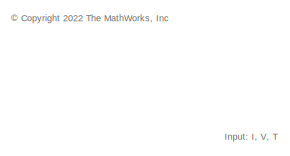
[diagram: root canvas - part 1/2, top left region]
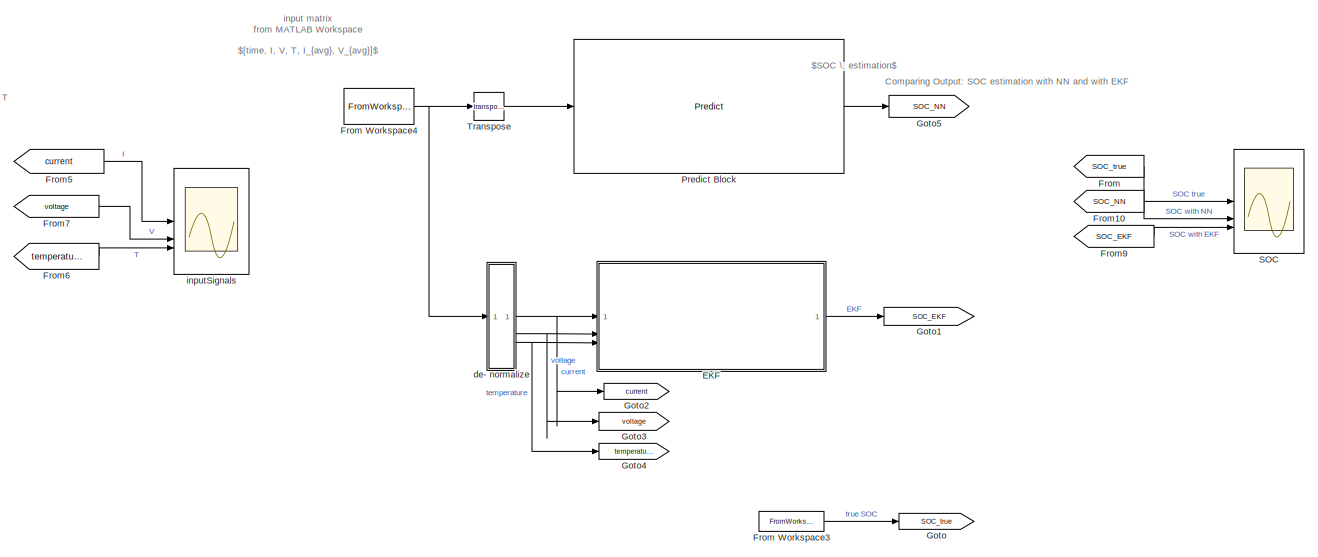
[diagram: root canvas - part 2/2, most of the canvas]
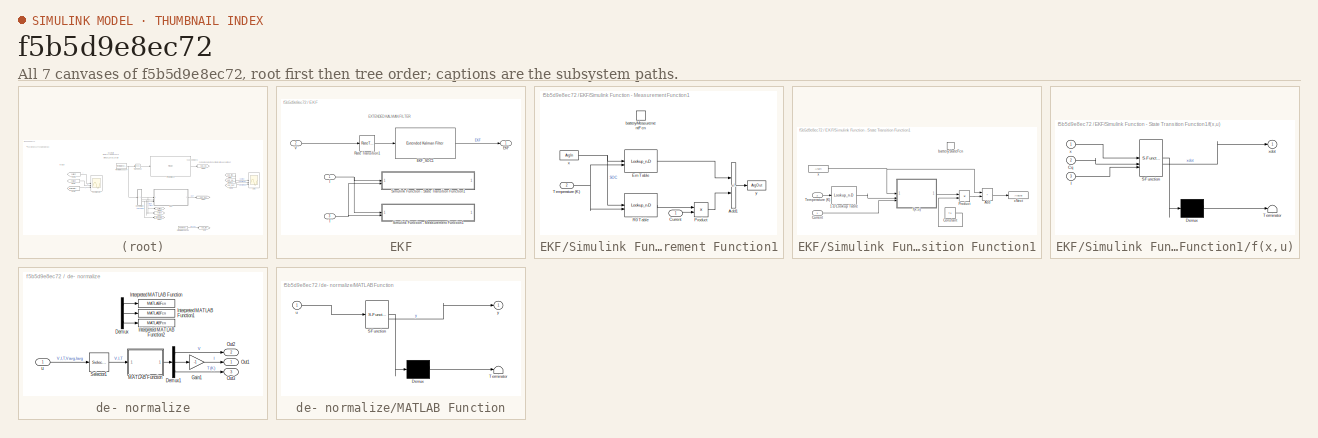
[diagram: thumbnail index - all 7 canvases of the model, root first then tree order]
MODEL slx_f5b5d9e8ec72
KIND model
CONFIG AbsTol = 1e-3
CONFIG EnableMultiTasking = off
CONFIG FixedStep = stepSize
CONFIG InitFcn = load SOC_SLdata
CONFIG MaxStep = 60
CONFIG MinStep = auto
CONFIG RelTol = 1e-3
CONFIG SampleTimeConstraint = Unconstrained
CONFIG SolverName = FixedStepAuto
CONFIG StartTime = 0.0
CONFIG StopTime = timeVector(end)
BLOCK [SubSystem] EKF
  TreatAsAtomicUnit = on
BLOCK [Outport] EKF/EKF
  VectorParamsAs1DForOutWhenUnconnected = off
BLOCK [Reference] EKF/EKF_SOC1  REF=sharedTrackingLibrary/Extended Kalman Filter
  SourceBlock = sharedTrackingLibrary/Extended Kalman Filter
  SourceType = Extended Kalman Filter
BLOCK [Inport] EKF/I
BLOCK [RateTransition] EKF/Rate Transition1
BLOCK [SubSystem] EKF/Simulink Function - Measurement Function1
  TreatAsAtomicUnit = on
BLOCK [Sum] EKF/Simulink Function - Measurement Function1/Add1
  IconShape = rectangular
  Inputs = +-
BLOCK [Inport] EKF/Simulink Function - Measurement Function1/Current
BLOCK [Lookup_n-D] EKF/Simulink Function - Measurement Function1/Em Table
  BreakpointsForDimension1 = BatteryNN.SOC_LUT
  BreakpointsForDimension2 = BatteryNN.Temperature_LUT
  InputPortMap = u0,u1
  InternalRulePriority = Speed
  RndMeth = Simplest
  Table = BatteryNN.Em_LUT
BLOCK [Product] EKF/Simulink Function - Measurement Function1/Product
BLOCK [Lookup_n-D] EKF/Simulink Function - Measurement Function1/R0 Table
  BreakpointsForDimension1 = BatteryNN.SOC_LUT
  BreakpointsForDimension2 = BatteryNN.Temperature_LUT
  InputPortMap = u0,u1
  InternalRulePriority = Speed
  RndMeth = Simplest
  Table = BatteryNN.R0_LUT
BLOCK [Inport] EKF/Simulink Function - Measurement Function1/Temperature (K)
  Port = 2
BLOCK [TriggerPort] EKF/Simulink Function - Measurement Function1/batteryMeasurementFcn
  FunctionName = batteryMeasurementFcn
  FunctionVisibility = scoped
  IsSimulinkFunction = on
  StatesWhenEnabling = held
  TriggerType = function-call
  VariantControl = Variant
BLOCK [ArgIn] EKF/Simulink Function - Measurement Function1/x
  ArgumentName = x
  DisableCoverage = on
BLOCK [ArgOut] EKF/Simulink Function - Measurement Function1/y
  ArgumentName = y
  DisableCoverage = on
BLOCK [SubSystem] EKF/Simulink Function - State Transition Function1
  TreatAsAtomicUnit = on
BLOCK [Lookup_n-D] EKF/Simulink Function - State Transition Function1/1-D Lookup Table
  BreakpointsForDimension1 = BatteryNN.Temperature_LUT
  InputPortMap = u0
  InternalRulePriority = Speed
  NumberOfTableDimensions = 1
  RndMeth = Simplest
  Table = BatteryNN.Capacity_LUT
BLOCK [Sum] EKF/Simulink Function - State Transition Function1/Add
  IconShape = rectangular
BLOCK [Constant] EKF/Simulink Function - State Transition Function1/Constant
  OutDataTypeStr = single
  Value = Ts
BLOCK [Inport] EKF/Simulink Function - State Transition Function1/Current
BLOCK [Product] EKF/Simulink Function - State Transition Function1/Product
  OutDataTypeStr = single
BLOCK [Inport] EKF/Simulink Function - State Transition Function1/Temperature (K)
  Port = 2
BLOCK [TriggerPort] EKF/Simulink Function - State Transition Function1/batteryStateFcn
  FunctionName = batteryStateFcn
  FunctionVisibility = scoped
  IsSimulinkFunction = on
  StatesWhenEnabling = held
  TriggerType = function-call
  VariantControl = Variant
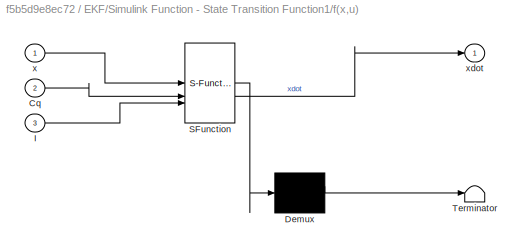
BLOCK [SubSystem] EKF/Simulink Function - State Transition Function1/f(x,u)
  ErrorFcn = Stateflow.Translate.translate
  PermitHierarchicalResolution = ExplicitOnly
  SFBlockType = MATLAB Function
  TreatAsAtomicUnit = on
BLOCK [Demux] EKF/Simulink Function - State Transition Function1/f(x,u)/ Demux 
  Outputs = 1
BLOCK [S-Function] EKF/Simulink Function - State Transition Function1/f(x,u)/ SFunction 
  EnableBusSupport = on
  FunctionName = sf_sfun
  PortCounts = [3 2]
  SFcnIsStateOwnerBlock = off
  SFunctionDeploymentMode = off
  Tag = Stateflow S-Function 5
BLOCK [Terminator] EKF/Simulink Function - State Transition Function1/f(x,u)/ Terminator 
BLOCK [Inport] EKF/Simulink Function - State Transition Function1/f(x,u)/Cq
  Port = 2
BLOCK [Inport] EKF/Simulink Function - State Transition Function1/f(x,u)/I
  Port = 3
BLOCK [Inport] EKF/Simulink Function - State Transition Function1/f(x,u)/x
BLOCK [Outport] EKF/Simulink Function - State Transition Function1/f(x,u)/xdot
  VectorParamsAs1DForOutWhenUnconnected = off
BLOCK [ArgIn] EKF/Simulink Function - State Transition Function1/x
  ArgumentName = x
  DisableCoverage = on
BLOCK [ArgOut] EKF/Simulink Function - State Transition Function1/xNext
  ArgumentName = xNext
  DisableCoverage = on
BLOCK [Inport] EKF/T
  Port = 3
BLOCK [Inport] EKF/V
  Port = 2
BLOCK [From] From
  GotoTag = SOC_true
BLOCK [FromWorkspace] From Workspace3
  VariableName = nnOutput
BLOCK [FromWorkspace] From Workspace4
  VariableName = nnInput
BLOCK [From] From10
  GotoTag = SOC_NN
BLOCK [From] From5
  GotoTag = current
BLOCK [From] From6
  GotoTag = temperature
BLOCK [From] From7
  GotoTag = voltage
BLOCK [From] From9
  GotoTag = SOC_EKF
BLOCK [Goto] Goto
  GotoTag = SOC_true
BLOCK [Goto] Goto1
  GotoTag = SOC_EKF
BLOCK [Goto] Goto2
  GotoTag = current
BLOCK [Goto] Goto3
  GotoTag = voltage
BLOCK [Goto] Goto4
  GotoTag = temperature
BLOCK [Goto] Goto5
  GotoTag = SOC_NN
BLOCK [Reference] Predict Block   REF=deeplib/Predict
  SourceBlock = deeplib/Predict
  SourceType = Predict
BLOCK [Scope] SOC
  Floating = off
  NumInputPorts = 3
  ScopeSpecificationString = Simulink.scopes.TimeScopeBlockCfg('CurrentConfiguration', extmgr.ConfigurationSet(extmgr.Configuration('Core','General UI',true),extmgr.Configuration('Core','Source UI',true),extmgr.Configuration('Sources','WiredSimulink',true,'DataLoggingVariableName','ScopeData1'),extmgr.Configuration('Visuals','Time Domain',true,'SerializedDisplays',{struct('MinYLimReal','0.11455','MaxYLimReal','1.13587','YLabe...<+1465ch>
BLOCK [Math] Transpose
  Operator = transpose
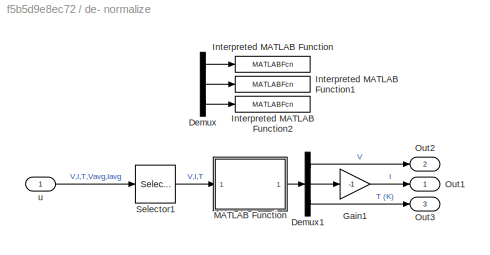
BLOCK [SubSystem] de- normalize
BLOCK [Demux] de- normalize/Demux
  Commented = on
  Outputs = 3
BLOCK [Demux] de- normalize/Demux1
  Outputs = 3
BLOCK [Gain] de- normalize/Gain1
  Gain = -1
BLOCK [MATLABFcn] de- normalize/Interpreted MATLAB Function
  Commented = on
  MATLABFcn = (X_MAX(2)-X_MIN(2))*u+X_MIN(2)
BLOCK [MATLABFcn] de- normalize/Interpreted MATLAB Function1
  Commented = on
  MATLABFcn = (X_MAX(1)-X_MIN(1))*u+X_MIN(1)
BLOCK [MATLABFcn] de- normalize/Interpreted MATLAB Function2
  Commented = on
  MATLABFcn = (X_MAX(3)-X_MIN(3))*u+X_MIN(3)+273.15
BLOCK [SubSystem] de- normalize/MATLAB Function
  ErrorFcn = Stateflow.Translate.translate
  PermitHierarchicalResolution = ExplicitOnly
  SFBlockType = MATLAB Function
  TreatAsAtomicUnit = on
BLOCK [Demux] de- normalize/MATLAB Function/ Demux 
  Outputs = 1
BLOCK [S-Function] de- normalize/MATLAB Function/ SFunction 
  EnableBusSupport = on
  FunctionName = sf_sfun
  Parameters = X_MAX,X_MIN
  PortCounts = [1 2]
  SFcnIsStateOwnerBlock = off
  SFunctionDeploymentMode = off
  Tag = Stateflow S-Function 3
BLOCK [Terminator] de- normalize/MATLAB Function/ Terminator 
BLOCK [Inport] de- normalize/MATLAB Function/u
BLOCK [Outport] de- normalize/MATLAB Function/y
BLOCK [Outport] de- normalize/Out1
BLOCK [Outport] de- normalize/Out2
  Port = 2
BLOCK [Outport] de- normalize/Out3
  Port = 3
BLOCK [Selector] de- normalize/Selector1
  IndexOptions = Index vector (dialog)
  Indices = [1 2 3]
  InputPortWidth = 5
  OutputSizes = 1
BLOCK [Inport] de- normalize/u
BLOCK [Scope] inputSignals
  Floating = off
  NumInputPorts = 3
  ScopeSpecificationString = Simulink.scopes.TimeScopeBlockCfg('CurrentConfiguration', extmgr.ConfigurationSet(extmgr.Configuration('Core','General UI',true),extmgr.Configuration('Core','Source UI',true),extmgr.Configuration('Sources','WiredSimulink',true),extmgr.Configuration('Visuals','Time Domain',true,'SerializedDisplays',{struct('MinYLimReal','-8.46176','MaxYLimReal','16.17474','YLabelReal','','MinYLimMag','0.00000','Max...<+2797ch>
ANNOTATION (root): input matrix from MATLAB Workspace
ANNOTATION (root): <copyright redacted>
ANNOTATION (root): $[time, I, V, T, I_{avg}, V_{avg}]$
ANNOTATION (root): $SOC \; estimation$
ANNOTATION (root): Comparing Output: SOC estimation with NN and with EKF
ANNOTATION (root): Input: I, V, T
ANNOTATION EKF: EXTENDED KALMAN FILTER
LINE EKF/EKF_SOC1:1 -> EKF/EKF:1
NET EKF/I:1 -> EKF/Simulink Function - Measurement Function1:1, EKF/Simulink Function - State Transition Function1:1
LINE EKF/Rate Transition1:1 -> EKF/EKF_SOC1:1
LINE EKF/Simulink Function - Measurement Function1/Add1:1 -> EKF/Simulink Function - Measurement Function1/y:1
LINE EKF/Simulink Function - Measurement Function1/Current:1 -> EKF/Simulink Function - Measurement Function1/Product:2
LINE EKF/Simulink Function - Measurement Function1/Em Table:1 -> EKF/Simulink Function - Measurement Function1/Add1:1
LINE EKF/Simulink Function - Measurement Function1/Product:1 -> EKF/Simulink Function - Measurement Function1/Add1:2
LINE EKF/Simulink Function - Measurement Function1/R0 Table:1 -> EKF/Simulink Function - Measurement Function1/Product:1
NET EKF/Simulink Function - Measurement Function1/Temperature (K):1 -> EKF/Simulink Function - Measurement Function1/Em Table:2, EKF/Simulink Function - Measurement Function1/R0 Table:2
NET EKF/Simulink Function - Measurement Function1/x:1 -> EKF/Simulink Function - Measurement Function1/Em Table:1, EKF/Simulink Function - Measurement Function1/R0 Table:1
LINE EKF/Simulink Function - State Transition Function1/1-D Lookup Table:1 -> EKF/Simulink Function - State Transition Function1/f(x,u):2
LINE EKF/Simulink Function - State Transition Function1/Add:1 -> EKF/Simulink Function - State Transition Function1/xNext:1
LINE EKF/Simulink Function - State Transition Function1/Constant:1 -> EKF/Simulink Function - State Transition Function1/Product:2
LINE EKF/Simulink Function - State Transition Function1/Current:1 -> EKF/Simulink Function - State Transition Function1/f(x,u):3
LINE EKF/Simulink Function - State Transition Function1/Product:1 -> EKF/Simulink Function - State Transition Function1/Add:2
LINE EKF/Simulink Function - State Transition Function1/Temperature (K):1 -> EKF/Simulink Function - State Transition Function1/1-D Lookup Table:1
LINE EKF/Simulink Function - State Transition Function1/f(x,u):1 -> EKF/Simulink Function - State Transition Function1/Product:1
NET EKF/Simulink Function - State Transition Function1/x:1 -> EKF/Simulink Function - State Transition Function1/Add:1, EKF/Simulink Function - State Transition Function1/f(x,u):1
NET EKF/T:1 -> EKF/Simulink Function - Measurement Function1:2, EKF/Simulink Function - State Transition Function1:2
LINE EKF/V:1 -> EKF/Rate Transition1:1
LINE EKF:1 -> Goto1:1
LINE From Workspace3:1 -> Goto:1
NET From Workspace4:1 -> Transpose:1, de- normalize:1
LINE From10:1 -> SOC:2
LINE From5:1 -> inputSignals:1
LINE From6:1 -> inputSignals:3
LINE From7:1 -> inputSignals:2
LINE From9:1 -> SOC:3
LINE From:1 -> SOC:1
LINE Predict Block :1 -> Goto5:1
LINE Transpose:1 -> Predict Block :1
LINE de- normalize/Demux1:1 -> de- normalize/Out2:1
LINE de- normalize/Demux1:2 -> de- normalize/Gain1:1
LINE de- normalize/Demux1:3 -> de- normalize/Out3:1
LINE de- normalize/Demux:1 -> de- normalize/Interpreted MATLAB Function:1
LINE de- normalize/Demux:2 -> de- normalize/Interpreted MATLAB Function1:1
LINE de- normalize/Demux:3 -> de- normalize/Interpreted MATLAB Function2:1
LINE de- normalize/Gain1:1 -> de- normalize/Out1:1
LINE de- normalize/MATLAB Function:1 -> de- normalize/Demux1:1
LINE de- normalize/Selector1:1 -> de- normalize/MATLAB Function:1
LINE de- normalize/u:1 -> de- normalize/Selector1:1
NET de- normalize:1 -> EKF:1, Goto2:1
NET de- normalize:2 -> EKF:2, Goto3:1
NET de- normalize:3 -> EKF:3, Goto4:1
note: NET lines group one-source signal fan-out (src -> all destinations, sorted); 1:1 wires keep LINE
CHART de-
normalize/MATLAB Function states=1 transitions=1
  STATE_LABEL 'eML_blk_kernel()'
  STATE_LABEL 'SCRIPT:\nfunction y = fcn(u, X_MAX, X_MIN)\ny = (X_MAX-X_MIN).*u+X_MIN;\ny(3) = y(3) + 273.15; % convert to K\n'
CHART EKF/Simulink Function - State Transition Function1/f(x,u) states=1 transitions=1
  STATE_LABEL 'eML_blk_kernel()'
  STATE_LABEL 'SCRIPT:\nfunction xdot = fx(x,Cq,I)\n% function xdot = fx(x,R1,R2,R3,t1,t2,t3,Cq,I)\nxdot = zeros(size(x));\n% U1 = x(2);\n% U2 = x(3);\n% U3 = x(4);\nxdot(1) = -I/(3600*Cq);\n% xdot(2) = -1/t1*U1 + I/(t1/R1);\n% xdot(3) = -1/t2*U2 + I/(t2/R2);\n% xdot(4) = -1/t3*U3 + I/(t3/R3);\n'
CHART  states=0 transitions=0
CHART  states=0 transitions=0
